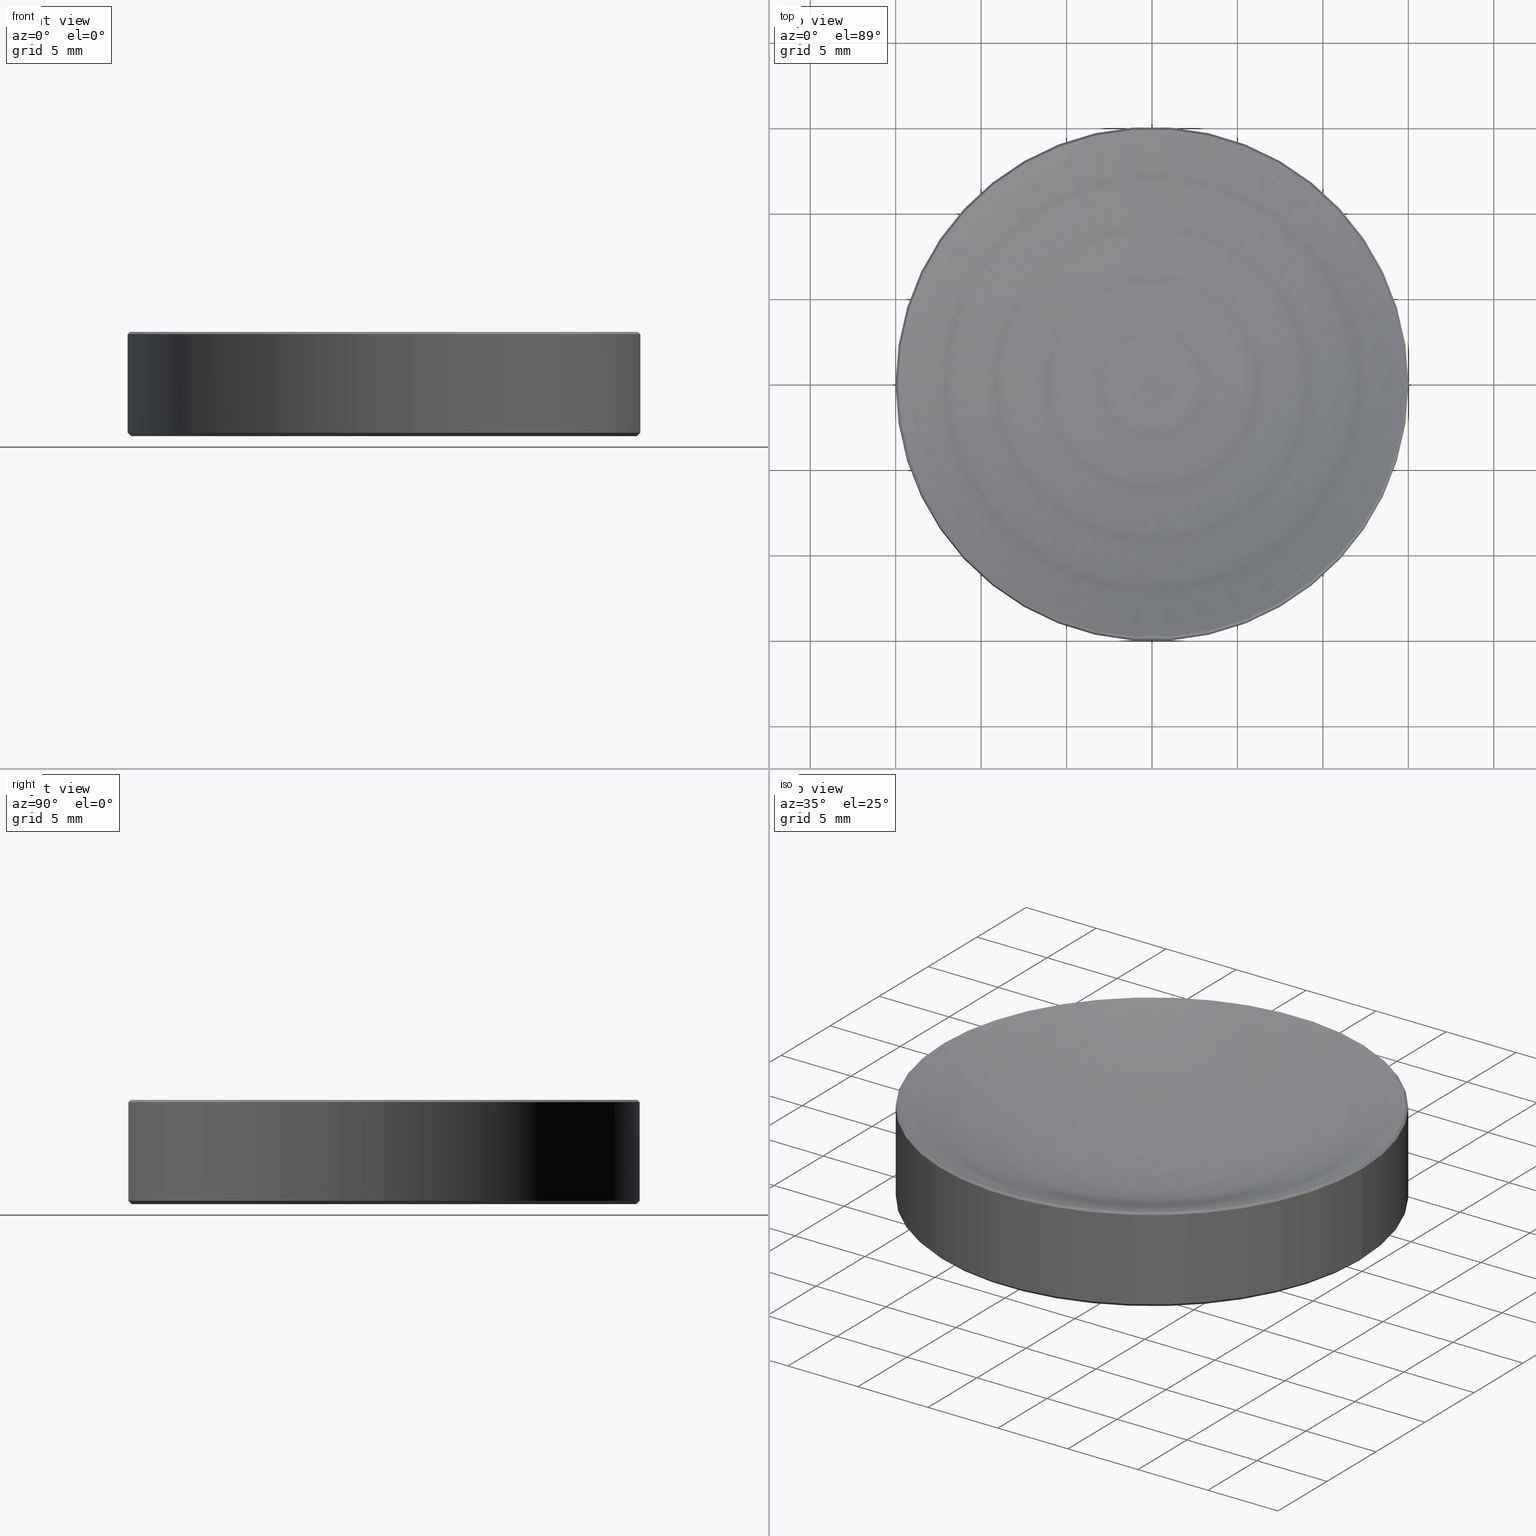
[diagram: canonical four-view strip — front | top / right | iso, engineering-drawing reading convention]
A machine part, canonical four-view strip (front | top / right | iso — engineering-drawing reading convention). The complete STEP part file that produces these views, byte-faithful:
ISO-10303-21;
HEADER;
FILE_DESCRIPTION (( 'STEP AP214' ),
    '1' );
FILE_NAME ('GL13-030-063.STEP',
    '2022-10-25T13:45:31',
    ( '' ),
    ( '' ),
    'SwSTEP 2.0',
    'SolidWorks 2022',
    '' );
FILE_SCHEMA (( 'AUTOMOTIVE_DESIGN' ));
ENDSEC;

DATA;
#1 = ORIENTED_EDGE ( 'NONE', *, *, #222, .F. ) ;
#2 = ORIENTED_EDGE ( 'NONE', *, *, #90, .T. ) ;
#3 = DIRECTION ( 'NONE',  ( -1.000000000000000000, 1.224646799147353454E-16, 0.000000000000000000 ) ) ;
#4 = CARTESIAN_POINT ( 'NONE',  ( 0.000000000000000000, 0.000000000000000000, 34.99999988757134872 ) ) ;
#5 = ADVANCED_FACE ( 'NONE', ( #243 ), #202, .T. ) ;
#6 = VECTOR ( 'NONE', #93, 1000.000000000000000 ) ;
#7 = FACE_OUTER_BOUND ( 'NONE', #181, .T. ) ;
#8 = DIRECTION ( 'NONE',  ( 1.000000000000000000, 0.000000000000000000, 0.000000000000000000 ) ) ;
#9 = MANIFOLD_SOLID_BREP ( '����2', #248 ) ;
#10 = APPLICATION_PROTOCOL_DEFINITION ( 'draft international standard', 'automotive_design', 1998, #154 ) ;
#11 = DIRECTION ( 'NONE',  ( 1.000000000000000000, 0.000000000000000000, 0.000000000000000000 ) ) ;
#12 = COLOUR_RGB ( '',1.000000000000000000, 1.000000000000000000, 1.000000000000000000 ) ;
#13 = AXIS2_PLACEMENT_3D ( 'NONE', #121, #170, #190 ) ;
#14 = CARTESIAN_POINT ( 'NONE',  ( 0.000000000000000000, 0.000000000000000000, 6.101796822796098141 ) ) ;
#15 = AXIS2_PLACEMENT_3D ( 'NONE', #14, #58, #155 ) ;
#16 = AXIS2_PLACEMENT_3D ( 'NONE', #64, #77, #117 ) ;
#17 = ORIENTED_EDGE ( 'NONE', *, *, #100, .T. ) ;
#18 = PRODUCT ( 'GL13-030-063', 'GL13-030-063', '', ( #217 ) ) ;
#19 = ORIENTED_EDGE ( 'NONE', *, *, #178, .F. ) ;
#20 = CARTESIAN_POINT ( 'NONE',  ( -15.00000000000000000, 1.836970198721029589E-15, 0.2000000000000118072 ) ) ;
#21 = EDGE_LOOP ( 'NONE', ( #239, #203, #184 ) ) ;
#22 = ORIENTED_EDGE ( 'NONE', *, *, #205, .F. ) ;
#23 = AXIS2_PLACEMENT_3D ( 'NONE', #253, #147, #229 ) ;
#24 = ORIENTED_EDGE ( 'NONE', *, *, #56, .T. ) ;
#25 = PRESENTATION_STYLE_ASSIGNMENT (( #151 ) ) ;
#26 = PRODUCT_RELATED_PRODUCT_CATEGORY ( 'part', '', ( #18 ) ) ;
#27 = DIRECTION ( 'NONE',  ( -0.000000000000000000, -0.000000000000000000, 1.000000000000000000 ) ) ;
#28 = STYLED_ITEM ( 'NONE', ( #41 ), #112 ) ;
#29 = TOROIDAL_SURFACE ( 'NONE', #140, -0.002703305825795844497, 32.50000000000000000 ) ;
#30 = CARTESIAN_POINT ( 'NONE',  ( 0.000000000000000000, 0.000000000000000000, 9.184850993605147944E-16 ) ) ;
#31 = CARTESIAN_POINT ( 'NONE',  ( 0.000000000000000000, 0.000000000000000000, 6.101796822796098141 ) ) ;
#32 = CIRCLE ( 'NONE', #182, 15.00000000000000000 ) ;
#33 = CARTESIAN_POINT ( 'NONE',  ( 15.00000000000000000, 0.000000000000000000, 2.500000000000000000 ) ) ;
#34 = CARTESIAN_POINT ( 'NONE',  ( -14.86820317720389895, 0.000000000000000000, 6.101796822796098141 ) ) ;
#35 = PRODUCT_DEFINITION_FORMATION_WITH_SPECIFIED_SOURCE ( '�κ�', '', #18, .NOT_KNOWN. ) ;
#36 = EDGE_CURVE ( 'NONE', #225, #223, #32, .T. ) ;
#37 = ADVANCED_FACE ( 'NONE', ( #51 ), #104, .F. ) ;
#38 = ORIENTED_EDGE ( 'NONE', *, *, #158, .F. ) ;
#39 = CONICAL_SURFACE ( 'NONE', #246, 15.00000000000000000, 0.7853981633974396193 ) ;
#40 = ORIENTED_EDGE ( 'NONE', *, *, #100, .F. ) ;
#41 = PRESENTATION_STYLE_ASSIGNMENT (( #200 ) ) ;
#42 = ORIENTED_EDGE ( 'NONE', *, *, #65, .T. ) ;
#43 = VERTEX_POINT ( 'NONE', #106 ) ;
#44 = EDGE_CURVE ( 'NONE', #223, #225, #59, .T. ) ;
#45 = EDGE_LOOP ( 'NONE', ( #17, #101 ) ) ;
#46 = DIRECTION ( 'NONE',  ( -0.000000000000000000, -0.000000000000000000, 1.000000000000000000 ) ) ;
#47 = DIRECTION ( 'NONE',  ( 1.000000000000000000, 0.000000000000000000, 0.000000000000000000 ) ) ;
#48 = EDGE_CURVE ( 'NONE', #82, #80, #214, .T. ) ;
#49 = CARTESIAN_POINT ( 'NONE',  ( -14.79999999999999183, 1.824723730729555049E-15, 9.184850993605147944E-16 ) ) ;
#50 = CARTESIAN_POINT ( 'NONE',  ( 0.000000000000000000, 0.000000000000000000, 0.2000000000000118072 ) ) ;
#51 = FACE_OUTER_BOUND ( 'NONE', #266, .T. ) ;
#52 = FACE_OUTER_BOUND ( 'NONE', #21, .T. ) ;
#53 = AXIS2_PLACEMENT_3D ( 'NONE', #238, #137, #94 ) ;
#54 = LINE ( 'NONE', #34, #166 ) ;
#55 = CARTESIAN_POINT ( 'NONE',  ( -0.002703305825795844497, 0.000000000000000000, 34.99999988757134872 ) ) ;
#56 = EDGE_CURVE ( 'NONE', #115, #225, #146, .T. ) ;
#57 = AXIS2_PLACEMENT_3D ( 'NONE', #130, #128, #92 ) ;
#58 = DIRECTION ( 'NONE',  ( 0.000000000000000000, 0.000000000000000000, -1.000000000000000000 ) ) ;
#59 = CIRCLE ( 'NONE', #160, 15.00000000000000000 ) ;
#60 = DIRECTION ( 'NONE',  ( -0.000000000000000000, -0.000000000000000000, 1.000000000000000000 ) ) ;
#61 = EDGE_LOOP ( 'NONE', ( #105, #24, #221, #1 ) ) ;
#62 =( NAMED_UNIT ( * ) PLANE_ANGLE_UNIT ( ) SI_UNIT ( $, .RADIAN. ) );
#63 = VECTOR ( 'NONE', #161, 1000.000000000000000 ) ;
#64 = CARTESIAN_POINT ( 'NONE',  ( 0.000000000000000000, 0.000000000000000000, 0.2000000000000118072 ) ) ;
#65 = EDGE_CURVE ( 'NONE', #225, #80, #86, .T. ) ;
#66 = ORIENTED_EDGE ( 'NONE', *, *, #81, .T. ) ;
#67 = AXIS2_PLACEMENT_3D ( 'NONE', #4, #89, #47 ) ;
#68 = CARTESIAN_POINT ( 'NONE',  ( 0.000000000000000000, 0.000000000000000000, 0.2000000000000118072 ) ) ;
#69 = CARTESIAN_POINT ( 'NONE',  ( -15.00000000000000000, 1.836970198721029589E-15, 5.969999999999999751 ) ) ;
#70 = VECTOR ( 'NONE', #188, 1000.000000000000000 ) ;
#71 = DIRECTION ( 'NONE',  ( 0.000000000000000000, 0.000000000000000000, -1.000000000000000000 ) ) ;
#72 = DIRECTION ( 'NONE',  ( 0.7071067811865522357, 8.659560562354992023E-17, -0.7071067811865429098 ) ) ;
#73 = MECHANICAL_DESIGN_GEOMETRIC_PRESENTATION_REPRESENTATION (  '', ( #169 ), #263 ) ;
#74 = DIRECTION ( 'NONE',  ( 1.000000000000000000, 0.000000000000000000, 0.000000000000000000 ) ) ;
#75 = DIRECTION ( 'NONE',  ( 1.000000000000000000, 0.000000000000000000, 0.000000000000000000 ) ) ;
#76 = CIRCLE ( 'NONE', #254, 14.86820317720389895 ) ;
#77 = DIRECTION ( 'NONE',  ( -0.000000000000000000, -0.000000000000000000, 1.000000000000000000 ) ) ;
#78 = FILL_AREA_STYLE ('',( #98 ) ) ;
#79 = SURFACE_STYLE_FILL_AREA ( #265 ) ;
#80 = VERTEX_POINT ( 'NONE', #69 ) ;
#81 = EDGE_CURVE ( 'NONE', #84, #143, #76, .T. ) ;
#82 = VERTEX_POINT ( 'NONE', #251 ) ;
#83 = MECHANICAL_DESIGN_GEOMETRIC_PRESENTATION_REPRESENTATION (  '', ( #28 ), #259 ) ;
#84 = VERTEX_POINT ( 'NONE', #211 ) ;
#85 = DIRECTION ( 'NONE',  ( 0.000000000000000000, 0.000000000000000000, -1.000000000000000000 ) ) ;
#86 = LINE ( 'NONE', #250, #70 ) ;
#87 = DIRECTION ( 'NONE',  ( 1.000000000000000000, 0.000000000000000000, 0.000000000000000000 ) ) ;
#88 = AXIS2_PLACEMENT_3D ( 'NONE', #114, #195, #8 ) ;
#89 = DIRECTION ( 'NONE',  ( -0.000000000000000000, -0.000000000000000000, 1.000000000000000000 ) ) ;
#90 = EDGE_CURVE ( 'NONE', #80, #82, #134, .T. ) ;
#91 = DIRECTION ( 'NONE',  ( 1.000000000000000000, 0.000000000000000000, 0.000000000000000000 ) ) ;
#92 = DIRECTION ( 'NONE',  ( 1.000000000000000000, 0.000000000000000000, 0.000000000000000000 ) ) ;
#93 = DIRECTION ( 'NONE',  ( -0.000000000000000000, -0.000000000000000000, 1.000000000000000000 ) ) ;
#94 = DIRECTION ( 'NONE',  ( 1.000000000000000000, 0.000000000000000000, 0.000000000000000000 ) ) ;
#95 = CONICAL_SURFACE ( 'NONE', #156, 14.86820317720389895, 0.7853981633974549403 ) ;
#96 =( LENGTH_UNIT ( ) NAMED_UNIT ( * ) SI_UNIT ( .MILLI., .METRE. ) );
#97 = ORIENTED_EDGE ( 'NONE', *, *, #81, .F. ) ;
#98 = FILL_AREA_STYLE_COLOUR ( '', #12 ) ;
#99 = EDGE_LOOP ( 'NONE', ( #206, #145, #167, #38 ) ) ;
#100 = EDGE_CURVE ( 'NONE', #43, #115, #174, .T. ) ;
#101 = ORIENTED_EDGE ( 'NONE', *, *, #252, .T. ) ;
#102 = EDGE_CURVE ( 'NONE', #118, #84, #193, .T. ) ;
#103 = EDGE_LOOP ( 'NONE', ( #187, #40, #247, #164 ) ) ;
#104 = TOROIDAL_SURFACE ( 'NONE', #67, -0.002703305825795844497, 32.50000000000000000 ) ;
#105 = ORIENTED_EDGE ( 'NONE', *, *, #252, .F. ) ;
#106 = CARTESIAN_POINT ( 'NONE',  ( 14.79999999999999183, 0.000000000000000000, 9.184850993605147944E-16 ) ) ;
#107 =( LENGTH_UNIT ( ) NAMED_UNIT ( * ) SI_UNIT ( .MILLI., .METRE. ) );
#108 = DIRECTION ( 'NONE',  ( 1.000000000000000000, 0.000000000000000000, 0.000000000000000000 ) ) ;
#109 = EDGE_CURVE ( 'NONE', #143, #84, #212, .T. ) ;
#110 = AXIS2_PLACEMENT_3D ( 'NONE', #215, #153, #74 ) ;
#111 =( NAMED_UNIT ( * ) PLANE_ANGLE_UNIT ( ) SI_UNIT ( $, .RADIAN. ) );
#112 = ADVANCED_BREP_SHAPE_REPRESENTATION ( 'GL13-030-063', ( #9, #236 ), #245 ) ;
#113 = DIRECTION ( 'NONE',  ( 0.000000000000000000, 0.000000000000000000, -1.000000000000000000 ) ) ;
#114 = CARTESIAN_POINT ( 'NONE',  ( 0.000000000000000000, 0.000000000000000000, 2.500000000000000000 ) ) ;
#115 = VERTEX_POINT ( 'NONE', #49 ) ;
#116 = APPLICATION_PROTOCOL_DEFINITION ( 'draft international standard', 'automotive_design', 1998, #150 ) ;
#117 = DIRECTION ( 'NONE',  ( 1.000000000000000000, 0.000000000000000000, 0.000000000000000000 ) ) ;
#118 = VERTEX_POINT ( 'NONE', #210 ) ;
#119 = ORIENTED_EDGE ( 'NONE', *, *, #158, .T. ) ;
#120 = ORIENTED_EDGE ( 'NONE', *, *, #65, .F. ) ;
#121 = CARTESIAN_POINT ( 'NONE',  ( 0.000000000000000000, 0.000000000000000000, 6.101796822796101694 ) ) ;
#122 = CARTESIAN_POINT ( 'NONE',  ( -15.00000000000000000, 1.836970198721029194E-15, 0.2000000000000118072 ) ) ;
#123 = ADVANCED_FACE ( 'NONE', ( #209 ), #124, .F. ) ;
#124 = PLANE ( 'NONE',  #57 ) ;
#125 = PRODUCT_DEFINITION_CONTEXT ( 'detailed design', #154, 'design' ) ;
#126 = DIRECTION ( 'NONE',  ( -0.7071067811865414665, 8.659560562354857670E-17, 0.7071067811865536790 ) ) ;
#127 = CONICAL_SURFACE ( 'NONE', #15, 14.86820317720389895, 0.7853981633974549403 ) ;
#128 = DIRECTION ( 'NONE',  ( 0.000000000000000000, -0.000000000000000000, 1.000000000000000000 ) ) ;
#129 = CARTESIAN_POINT ( 'NONE',  ( 14.86820317720390072, 0.000000000000000000, 6.101796822796101694 ) ) ;
#130 = CARTESIAN_POINT ( 'NONE',  ( 0.000000000000000000, 0.000000000000000000, 9.184850993605147944E-16 ) ) ;
#131 = CARTESIAN_POINT ( 'NONE',  ( 15.00000000000000000, 0.000000000000000000, 0.2000000000000118072 ) ) ;
#132 = CARTESIAN_POINT ( 'NONE',  ( 15.00000000000000000, 0.000000000000000000, 0.2000000000000118072 ) ) ;
#133 = ADVANCED_FACE ( 'NONE', ( #177 ), #95, .T. ) ;
#134 = CIRCLE ( 'NONE', #23, 15.00000000000000000 ) ;
#135 = SHAPE_DEFINITION_REPRESENTATION ( #138, #112 ) ;
#136 = ORIENTED_EDGE ( 'NONE', *, *, #44, .T. ) ;
#137 = DIRECTION ( 'NONE',  ( 0.000000000000000000, 0.000000000000000000, -1.000000000000000000 ) ) ;
#138 = PRODUCT_DEFINITION_SHAPE ( 'NONE', 'NONE',  #242 ) ;
#139 = ORIENTED_EDGE ( 'NONE', *, *, #178, .T. ) ;
#140 = AXIS2_PLACEMENT_3D ( 'NONE', #233, #60, #11 ) ;
#141 =( NAMED_UNIT ( * ) SI_UNIT ( $, .STERADIAN. ) SOLID_ANGLE_UNIT ( ) );
#142 = ORIENTED_EDGE ( 'NONE', *, *, #196, .F. ) ;
#143 = VERTEX_POINT ( 'NONE', #129 ) ;
#144 = VECTOR ( 'NONE', #72, 1000.000000000000000 ) ;
#145 = ORIENTED_EDGE ( 'NONE', *, *, #205, .T. ) ;
#146 = LINE ( 'NONE', #122, #237 ) ;
#147 = DIRECTION ( 'NONE',  ( 0.000000000000000000, 0.000000000000000000, -1.000000000000000000 ) ) ;
#148 = ADVANCED_FACE ( 'NONE', ( #194 ), #216, .T. ) ;
#149 =( NAMED_UNIT ( * ) SI_UNIT ( $, .STERADIAN. ) SOLID_ANGLE_UNIT ( ) );
#150 = APPLICATION_CONTEXT ( 'automotive_design' ) ;
#151 = SURFACE_STYLE_USAGE ( .BOTH. , #163 ) ;
#152 = LINE ( 'NONE', #33, #6 ) ;
#153 = DIRECTION ( 'NONE',  ( -0.000000000000000000, -0.000000000000000000, 1.000000000000000000 ) ) ;
#154 = APPLICATION_CONTEXT ( 'automotive_design' ) ;
#155 = DIRECTION ( 'NONE',  ( -1.000000000000000000, 0.000000000000000000, 0.000000000000000000 ) ) ;
#156 = AXIS2_PLACEMENT_3D ( 'NONE', #31, #113, #234 ) ;
#157 =( NAMED_UNIT ( * ) PLANE_ANGLE_UNIT ( ) SI_UNIT ( $, .RADIAN. ) );
#158 = EDGE_CURVE ( 'NONE', #84, #80, #54, .T. ) ;
#159 = FACE_OUTER_BOUND ( 'NONE', #99, .T. ) ;
#160 = AXIS2_PLACEMENT_3D ( 'NONE', #68, #227, #87 ) ;
#161 = DIRECTION ( 'NONE',  ( 0.7071067811865414665, 0.000000000000000000, 0.7071067811865536790 ) ) ;
#162 = DIRECTION ( 'NONE',  ( -0.000000000000000000, -0.000000000000000000, 1.000000000000000000 ) ) ;
#163 = SURFACE_SIDE_STYLE ('',( #79 ) ) ;
#164 = ORIENTED_EDGE ( 'NONE', *, *, #36, .F. ) ;
#165 = EDGE_LOOP ( 'NONE', ( #120, #264, #139, #201 ) ) ;
#166 = VECTOR ( 'NONE', #257, 1000.000000000000000 ) ;
#167 = ORIENTED_EDGE ( 'NONE', *, *, #90, .F. ) ;
#168 = CIRCLE ( 'NONE', #53, 14.79999999999999183 ) ;
#169 = STYLED_ITEM ( 'NONE', ( #25 ), #9 ) ;
#170 = DIRECTION ( 'NONE',  ( -0.000000000000000000, -0.000000000000000000, 1.000000000000000000 ) ) ;
#171 = CARTESIAN_POINT ( 'NONE',  ( 0.000000000000000000, 0.000000000000000000, 6.101796822796101694 ) ) ;
#172 = CARTESIAN_POINT ( 'NONE',  ( 0.000000000000000000, 0.000000000000000000, 5.969999999999999751 ) ) ;
#173 = DIRECTION ( 'NONE',  ( -1.000000000000000000, 0.000000000000000000, 0.000000000000000000 ) ) ;
#174 = CIRCLE ( 'NONE', #228, 14.79999999999999183 ) ;
#175 = DIRECTION ( 'NONE',  ( 1.224646799147353207E-16, 1.000000000000000000, 0.000000000000000000 ) ) ;
#176 = CYLINDRICAL_SURFACE ( 'NONE', #110, 15.00000000000000000 ) ;
#177 = FACE_OUTER_BOUND ( 'NONE', #244, .T. ) ;
#178 = EDGE_CURVE ( 'NONE', #223, #82, #152, .T. ) ;
#179 = DIRECTION ( 'NONE',  ( 0.000000000000000000, 0.000000000000000000, 1.000000000000000000 ) ) ;
#180 = FACE_OUTER_BOUND ( 'NONE', #61, .T. ) ;
#181 = EDGE_LOOP ( 'NONE', ( #136, #42, #2, #19 ) ) ;
#182 = AXIS2_PLACEMENT_3D ( 'NONE', #50, #27, #91 ) ;
#183 = FILL_AREA_STYLE_COLOUR ( '', #189 ) ;
#184 = ORIENTED_EDGE ( 'NONE', *, *, #109, .T. ) ;
#185 = ORIENTED_EDGE ( 'NONE', *, *, #102, .T. ) ;
#186 = ADVANCED_FACE ( 'NONE', ( #7 ), #176, .T. ) ;
#187 = ORIENTED_EDGE ( 'NONE', *, *, #56, .F. ) ;
#188 = DIRECTION ( 'NONE',  ( -0.000000000000000000, -0.000000000000000000, 1.000000000000000000 ) ) ;
#189 = COLOUR_RGB ( '',1.000000000000000000, 1.000000000000000000, 1.000000000000000000 ) ;
#190 = DIRECTION ( 'NONE',  ( 1.000000000000000000, 0.000000000000000000, 0.000000000000000000 ) ) ;
#191 = UNCERTAINTY_MEASURE_WITH_UNIT (LENGTH_MEASURE( 1.000000000000000082E-05 ), #107, 'distance_accuracy_value', 'NONE');
#192 = DIRECTION ( 'NONE',  ( 0.000000000000000000, 0.000000000000000000, -1.000000000000000000 ) ) ;
#193 = CIRCLE ( 'NONE', #204, 32.50000000000000000 ) ;
#194 = FACE_OUTER_BOUND ( 'NONE', #165, .T. ) ;
#195 = DIRECTION ( 'NONE',  ( -0.000000000000000000, -0.000000000000000000, 1.000000000000000000 ) ) ;
#196 = EDGE_CURVE ( 'NONE', #118, #143, #224, .T. ) ;
#197 = SURFACE_SIDE_STYLE ('',( #218 ) ) ;
#198 = CARTESIAN_POINT ( 'NONE',  ( 0.000000000000000000, 0.000000000000000000, 0.000000000000000000 ) ) ;
#199 = PRESENTATION_LAYER_ASSIGNMENT (  '', '', ( #28 ) ) ;
#200 = SURFACE_STYLE_USAGE ( .BOTH. , #197 ) ;
#201 = ORIENTED_EDGE ( 'NONE', *, *, #48, .T. ) ;
#202 = CONICAL_SURFACE ( 'NONE', #16, 15.00000000000000000, 0.7853981633974396193 ) ;
#203 = ORIENTED_EDGE ( 'NONE', *, *, #196, .T. ) ;
#204 = AXIS2_PLACEMENT_3D ( 'NONE', #230, #175, #3 ) ;
#205 = EDGE_CURVE ( 'NONE', #143, #82, #232, .T. ) ;
#206 = ORIENTED_EDGE ( 'NONE', *, *, #109, .F. ) ;
#207 = ADVANCED_FACE ( 'NONE', ( #52 ), #29, .F. ) ;
#208 = AXIS2_PLACEMENT_3D ( 'NONE', #172, #85, #173 ) ;
#209 = FACE_OUTER_BOUND ( 'NONE', #45, .T. ) ;
#210 = CARTESIAN_POINT ( 'NONE',  ( 0.000000000000000000, 0.000000000000000000, 2.500000000000000000 ) ) ;
#211 = CARTESIAN_POINT ( 'NONE',  ( -14.86820317720390072, 1.820829743003526459E-15, 6.101796822796101694 ) ) ;
#212 = CIRCLE ( 'NONE', #13, 14.86820317720389895 ) ;
#213 = DIRECTION ( 'NONE',  ( 1.000000000000000000, 0.000000000000000000, 0.000000000000000000 ) ) ;
#214 = CIRCLE ( 'NONE', #208, 15.00000000000000000 ) ;
#215 = CARTESIAN_POINT ( 'NONE',  ( 0.000000000000000000, 0.000000000000000000, 2.500000000000000000 ) ) ;
#216 = CYLINDRICAL_SURFACE ( 'NONE', #88, 15.00000000000000000 ) ;
#217 = PRODUCT_CONTEXT ( 'NONE', #150, 'mechanical' ) ;
#218 = SURFACE_STYLE_FILL_AREA ( #78 ) ;
#219 =( LENGTH_UNIT ( ) NAMED_UNIT ( * ) SI_UNIT ( .MILLI., .METRE. ) );
#220 = ORIENTED_EDGE ( 'NONE', *, *, #48, .F. ) ;
#221 = ORIENTED_EDGE ( 'NONE', *, *, #44, .F. ) ;
#222 = EDGE_CURVE ( 'NONE', #43, #223, #235, .T. ) ;
#223 = VERTEX_POINT ( 'NONE', #131 ) ;
#224 = CIRCLE ( 'NONE', #260, 32.50000000000000000 ) ;
#225 = VERTEX_POINT ( 'NONE', #20 ) ;
#226 = UNCERTAINTY_MEASURE_WITH_UNIT (LENGTH_MEASURE( 1.000000000000000082E-05 ), #219, 'distance_accuracy_value', 'NONE');
#227 = DIRECTION ( 'NONE',  ( -0.000000000000000000, -0.000000000000000000, 1.000000000000000000 ) ) ;
#228 = AXIS2_PLACEMENT_3D ( 'NONE', #30, #192, #108 ) ;
#229 = DIRECTION ( 'NONE',  ( -1.000000000000000000, 0.000000000000000000, 0.000000000000000000 ) ) ;
#230 = CARTESIAN_POINT ( 'NONE',  ( 0.002703305825795844497, -3.310594826677273624E-19, 34.99999988757134872 ) ) ;
#231 = ADVANCED_FACE ( 'NONE', ( #180 ), #39, .T. ) ;
#232 = LINE ( 'NONE', #256, #144 ) ;
#233 = CARTESIAN_POINT ( 'NONE',  ( 0.000000000000000000, 0.000000000000000000, 34.99999988757134872 ) ) ;
#234 = DIRECTION ( 'NONE',  ( -1.000000000000000000, 0.000000000000000000, 0.000000000000000000 ) ) ;
#235 = LINE ( 'NONE', #132, #63 ) ;
#236 = AXIS2_PLACEMENT_3D ( 'NONE', #198, #179, #75 ) ;
#237 = VECTOR ( 'NONE', #126, 1000.000000000000000 ) ;
#238 = CARTESIAN_POINT ( 'NONE',  ( 0.000000000000000000, 0.000000000000000000, 9.184850993605147944E-16 ) ) ;
#239 = ORIENTED_EDGE ( 'NONE', *, *, #102, .F. ) ;
#240 = CARTESIAN_POINT ( 'NONE',  ( 0.000000000000000000, 0.000000000000000000, 0.2000000000000118072 ) ) ;
#241 = ADVANCED_FACE ( 'NONE', ( #159 ), #127, .T. ) ;
#242 = PRODUCT_DEFINITION ( 'δ֪', '', #35, #125 ) ;
#243 = FACE_OUTER_BOUND ( 'NONE', #103, .T. ) ;
#244 = EDGE_LOOP ( 'NONE', ( #22, #97, #119, #220 ) ) ;
#245 =( GEOMETRIC_REPRESENTATION_CONTEXT ( 3 ) GLOBAL_UNCERTAINTY_ASSIGNED_CONTEXT ( ( #226 ) ) GLOBAL_UNIT_ASSIGNED_CONTEXT ( ( #219, #62, #141 ) ) REPRESENTATION_CONTEXT ( 'NONE', 'WORKASPACE' ) );
#246 = AXIS2_PLACEMENT_3D ( 'NONE', #240, #162, #261 ) ;
#247 = ORIENTED_EDGE ( 'NONE', *, *, #222, .T. ) ;
#248 = CLOSED_SHELL ( 'NONE', ( #241, #231, #186, #37, #207, #148, #123, #5, #133 ) ) ;
#249 = UNCERTAINTY_MEASURE_WITH_UNIT (LENGTH_MEASURE( 1.000000000000000082E-05 ), #96, 'distance_accuracy_value', 'NONE');
#250 = CARTESIAN_POINT ( 'NONE',  ( -15.00000000000000000, 1.836970198721029589E-15, 2.500000000000000000 ) ) ;
#251 = CARTESIAN_POINT ( 'NONE',  ( 15.00000000000000000, 0.000000000000000000, 5.969999999999999751 ) ) ;
#252 = EDGE_CURVE ( 'NONE', #115, #43, #168, .T. ) ;
#253 = CARTESIAN_POINT ( 'NONE',  ( 0.000000000000000000, 0.000000000000000000, 5.969999999999999751 ) ) ;
#254 = AXIS2_PLACEMENT_3D ( 'NONE', #171, #46, #213 ) ;
#255 = DIRECTION ( 'NONE',  ( 0.000000000000000000, -1.000000000000000000, 0.000000000000000000 ) ) ;
#256 = CARTESIAN_POINT ( 'NONE',  ( 14.86820317720389895, 1.820829743003526064E-15, 6.101796822796098141 ) ) ;
#257 = DIRECTION ( 'NONE',  ( -0.7071067811865522357, 0.000000000000000000, -0.7071067811865429098 ) ) ;
#258 =( NAMED_UNIT ( * ) SI_UNIT ( $, .STERADIAN. ) SOLID_ANGLE_UNIT ( ) );
#259 =( GEOMETRIC_REPRESENTATION_CONTEXT ( 3 ) GLOBAL_UNCERTAINTY_ASSIGNED_CONTEXT ( ( #249 ) ) GLOBAL_UNIT_ASSIGNED_CONTEXT ( ( #96, #157, #258 ) ) REPRESENTATION_CONTEXT ( 'NONE', 'WORKASPACE' ) );
#260 = AXIS2_PLACEMENT_3D ( 'NONE', #55, #255, #71 ) ;
#261 = DIRECTION ( 'NONE',  ( 1.000000000000000000, 0.000000000000000000, 0.000000000000000000 ) ) ;
#262 = PRESENTATION_LAYER_ASSIGNMENT (  '', '', ( #169 ) ) ;
#263 =( GEOMETRIC_REPRESENTATION_CONTEXT ( 3 ) GLOBAL_UNCERTAINTY_ASSIGNED_CONTEXT ( ( #191 ) ) GLOBAL_UNIT_ASSIGNED_CONTEXT ( ( #107, #111, #149 ) ) REPRESENTATION_CONTEXT ( 'NONE', 'WORKASPACE' ) );
#264 = ORIENTED_EDGE ( 'NONE', *, *, #36, .T. ) ;
#265 = FILL_AREA_STYLE ('',( #183 ) ) ;
#266 = EDGE_LOOP ( 'NONE', ( #142, #185, #66 ) ) ;
ENDSEC;
END-ISO-10303-21;
